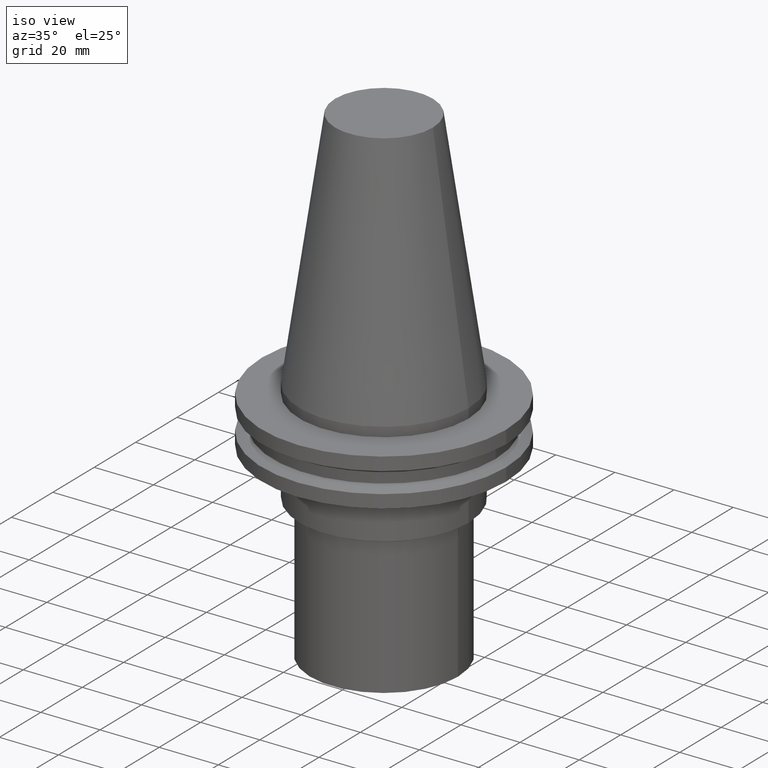
[diagram: clean part render]
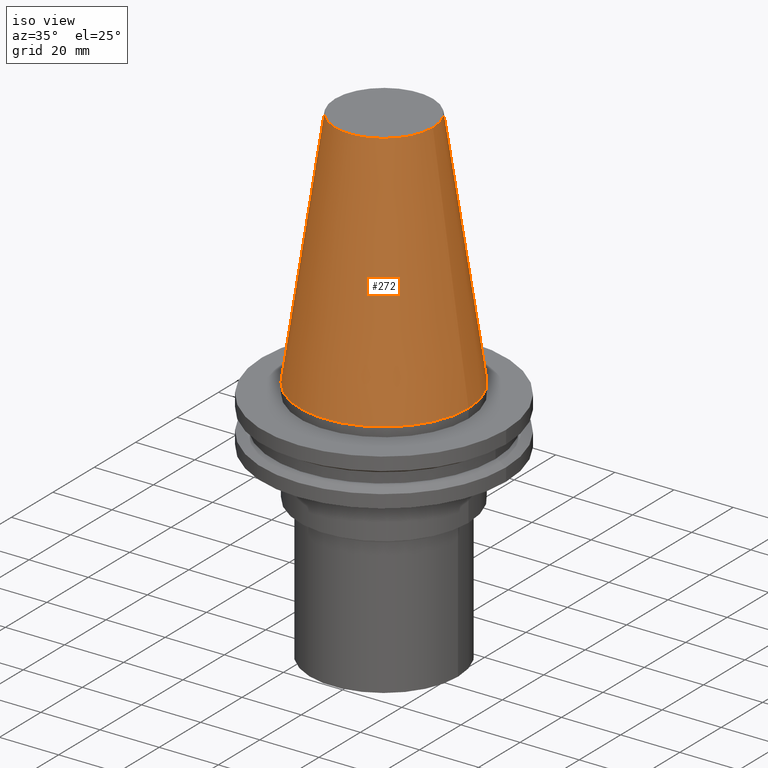
[diagram: tour spotlight — one face highlighted and labeled with its STEP entity id]
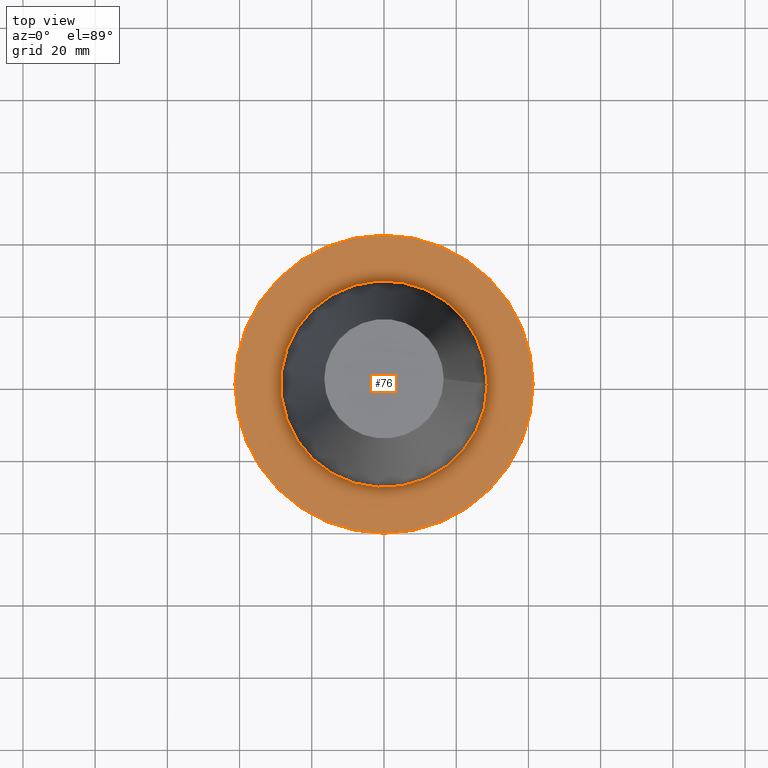
[diagram: tour spotlight — one face highlighted and labeled with its STEP entity id]
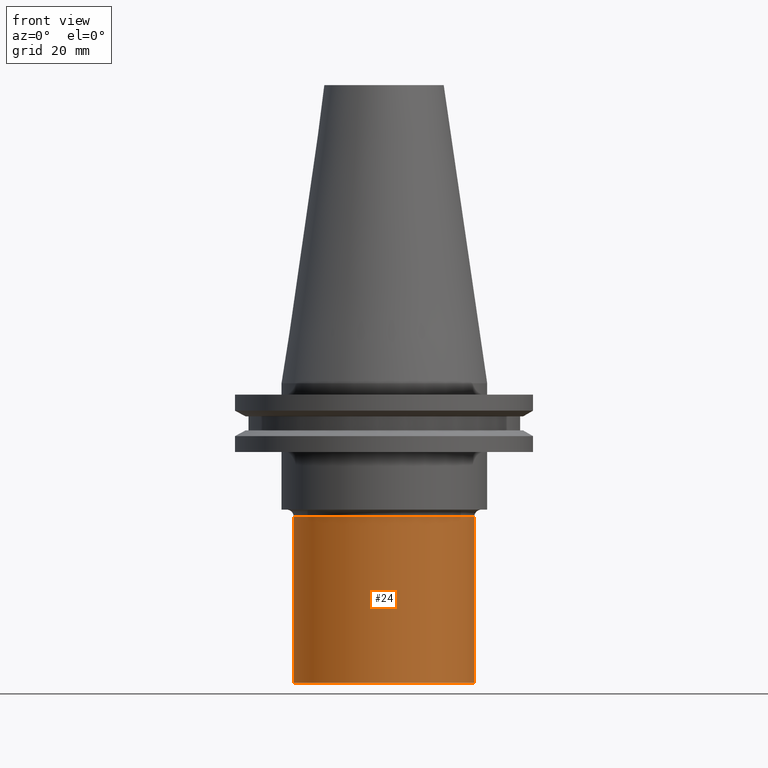
[diagram: tour spotlight — one face highlighted and labeled with its STEP entity id]
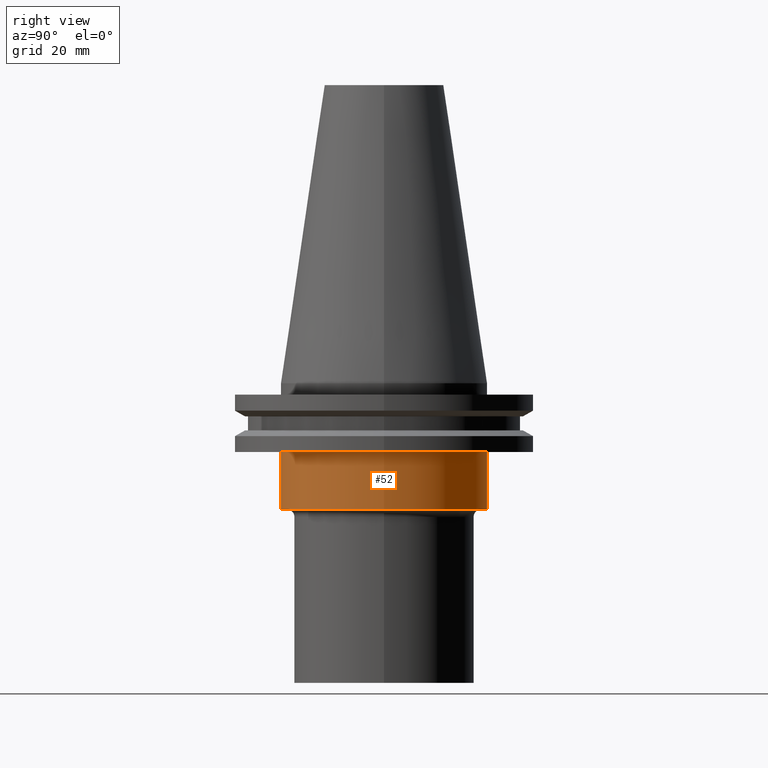
[diagram: tour spotlight — one face highlighted and labeled with its STEP entity id]
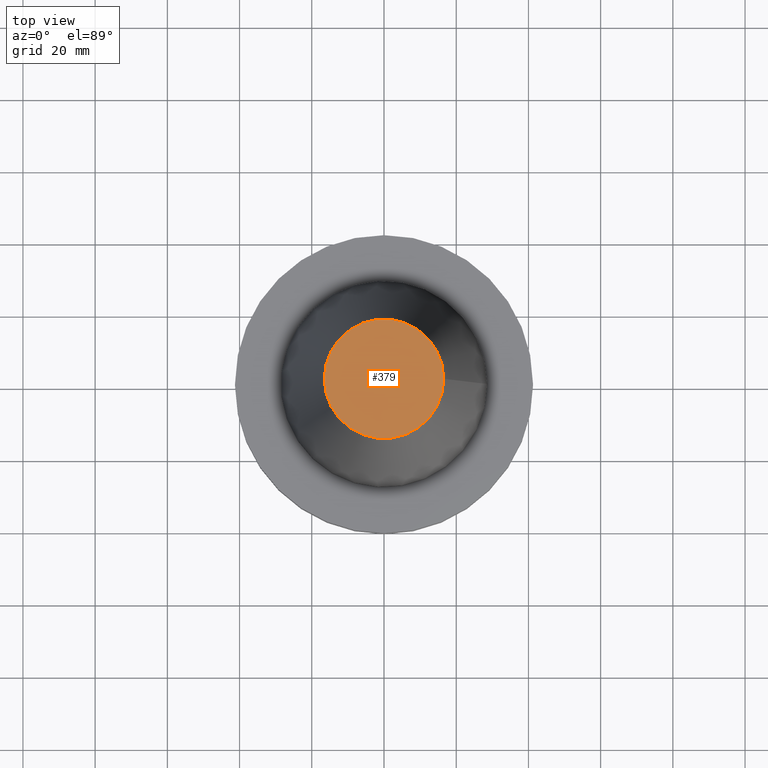
[diagram: tour spotlight — one face highlighted and labeled with its STEP entity id]
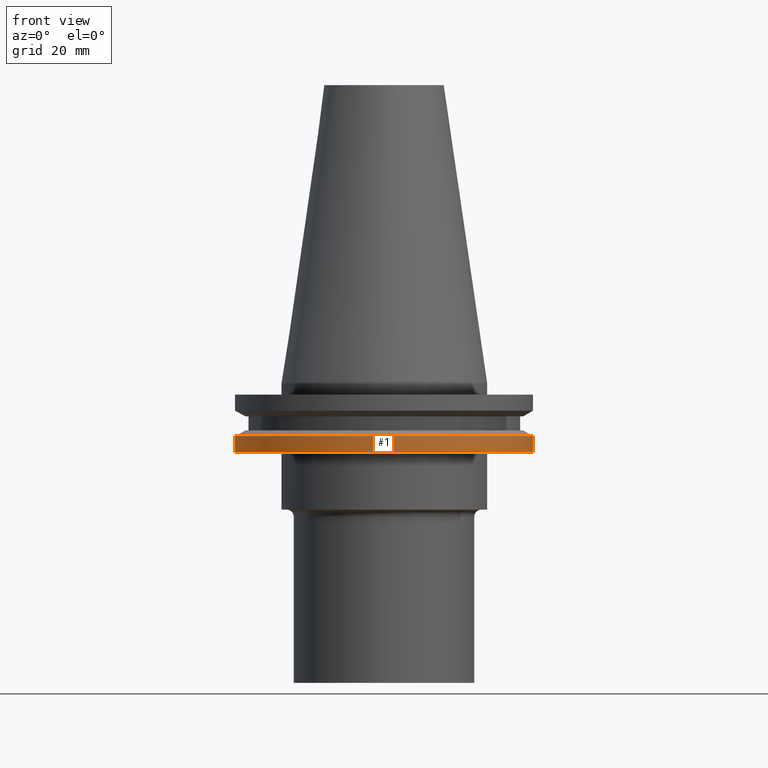
[diagram: tour spotlight — one face highlighted and labeled with its STEP entity id]
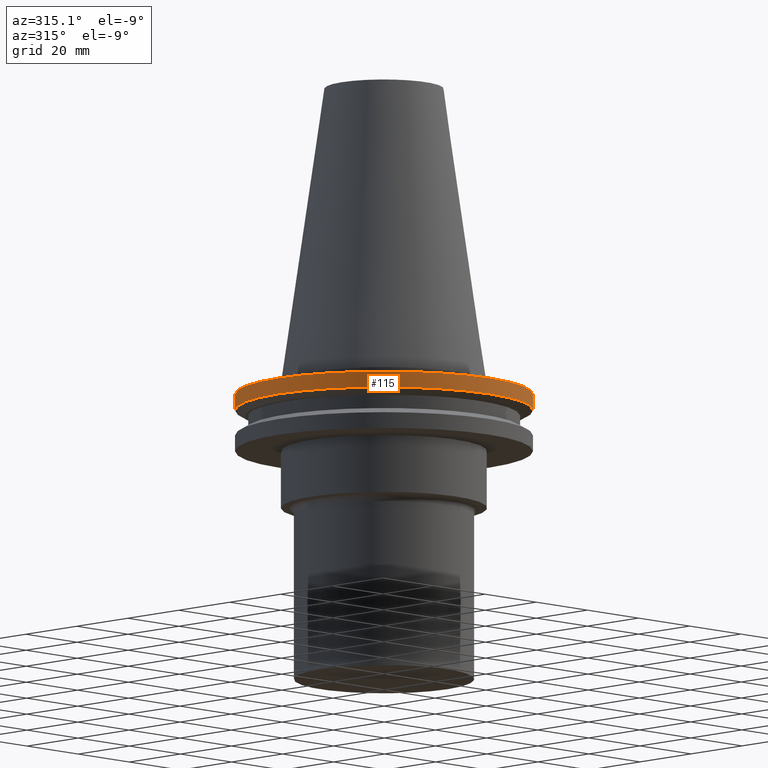
[diagram: tour spotlight — one face highlighted and labeled with its STEP entity id]
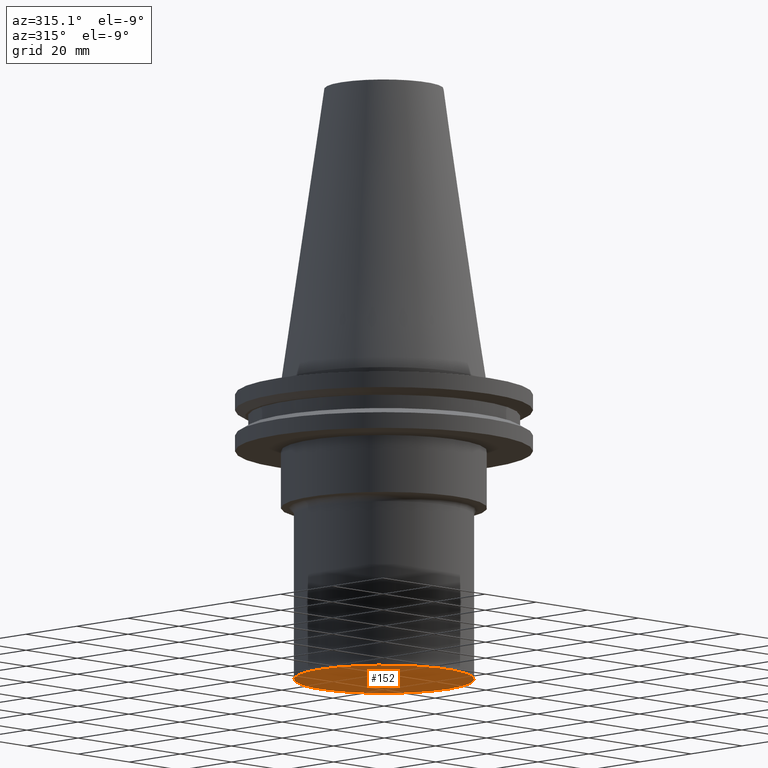
[diagram: tour spotlight — one face highlighted and labeled with its STEP entity id]
A machine part: a face-by-face anatomy tour. The part has 17 B-rep faces; the first image is the clean iso view, then the 8 largest visible faces are spotlighted one at a time (largest first), each with its STEP entity span.

Face 1 — iso view, entity #272. In plain terms, the highlighted conical surface has half-angle 8.297 deg.
Definition (entity closure, byte-faithful):
#6 = FACE_OUTER_BOUND ( 'NONE', #277, .T. ) ;
#26 = CARTESIAN_POINT ( 'NONE',  ( 16.53634466332832886, 0.000000000000000000, 82.55000000000001137 ) ) ;
#32 = AXIS2_PLACEMENT_3D ( 'NONE', #231, #386, #392 ) ;
#53 = CARTESIAN_POINT ( 'NONE',  ( 0.000000000000000000, 0.000000000000000000, 82.55000000000001137 ) ) ;
#111 = AXIS2_PLACEMENT_3D ( 'NONE', #53, #304, #270 ) ;
#122 = VERTEX_POINT ( 'NONE', #26 ) ;
#170 = EDGE_CURVE ( 'NONE', #372, #372, #404, .T. ) ;
#178 = EDGE_LOOP ( 'NONE', ( #374 ) ) ;
#191 = CIRCLE ( 'NONE', #111, 16.53634466332832886 ) ;
#199 = CARTESIAN_POINT ( 'NONE',  ( 0.000000000000000000, 0.000000000000000000, 0.000000000000000000 ) ) ;
#211 = ORIENTED_EDGE ( 'NONE', *, *, #170, .T. ) ;
#220 = AXIS2_PLACEMENT_3D ( 'NONE', #199, #324, #264 ) ;
#231 = CARTESIAN_POINT ( 'NONE',  ( 0.000000000000000000, 0.000000000000000000, 0.000000000000000000 ) ) ;
#255 = FACE_BOUND ( 'NONE', #178, .T. ) ;
#264 = DIRECTION ( 'NONE',  ( 1.000000000000000000, 0.000000000000000000, 0.000000000000000000 ) ) ;
#270 = DIRECTION ( 'NONE',  ( 1.000000000000000000, 0.000000000000000000, 0.000000000000000000 ) ) ;
#272 = ADVANCED_FACE ( 'NONE', ( #255, #6 ), #398, .T. ) ;
#277 = EDGE_LOOP ( 'NONE', ( #211 ) ) ;
#304 = DIRECTION ( 'NONE',  ( -0.000000000000000000, -0.000000000000000000, 1.000000000000000000 ) ) ;
#305 = CARTESIAN_POINT ( 'NONE',  ( 28.57499999999999218, 0.000000000000000000, 0.000000000000000000 ) ) ;
#324 = DIRECTION ( 'NONE',  ( -0.000000000000000000, -0.000000000000000000, 1.000000000000000000 ) ) ;
#372 = VERTEX_POINT ( 'NONE', #305 ) ;
#374 = ORIENTED_EDGE ( 'NONE', *, *, #394, .F. ) ;
#386 = DIRECTION ( 'NONE',  ( 0.000000000000000000, 0.000000000000000000, -1.000000000000000000 ) ) ;
#392 = DIRECTION ( 'NONE',  ( -1.000000000000000000, 0.000000000000000000, 0.000000000000000000 ) ) ;
#394 = EDGE_CURVE ( 'NONE', #122, #122, #191, .T. ) ;
#398 = CONICAL_SURFACE ( 'NONE', #32, 28.57499999999999218, 0.1448138465474119174 ) ;
#404 = CIRCLE ( 'NONE', #220, 28.57499999999999218 ) ;

Face 2 — top view, entity #76. In plain terms, the highlighted planar face has unit normal (0, 0, -1).
Definition (entity closure, byte-faithful):
#39 = CARTESIAN_POINT ( 'NONE',  ( 0.000000000000000000, 0.000000000000000000, -3.174999999999997158 ) ) ;
#41 = DIRECTION ( 'NONE',  ( 1.000000000000000000, 0.000000000000000000, 0.000000000000000000 ) ) ;
#45 = EDGE_CURVE ( 'NONE', #48, #48, #301, .T. ) ;
#48 = VERTEX_POINT ( 'NONE', #402 ) ;
#74 = DIRECTION ( 'NONE',  ( -0.000000000000000000, -0.000000000000000000, 1.000000000000000000 ) ) ;
#76 = ADVANCED_FACE ( 'NONE', ( #194, #126 ), #322, .F. ) ;
#109 = CIRCLE ( 'NONE', #316, 41.27499999999999147 ) ;
#114 = ORIENTED_EDGE ( 'NONE', *, *, #128, .T. ) ;
#126 = FACE_OUTER_BOUND ( 'NONE', #216, .T. ) ;
#128 = EDGE_CURVE ( 'NONE', #144, #144, #109, .T. ) ;
#144 = VERTEX_POINT ( 'NONE', #240 ) ;
#156 = CARTESIAN_POINT ( 'NONE',  ( 0.000000000000000000, 41.27499999999999147, -3.174999999999994493 ) ) ;
#190 = AXIS2_PLACEMENT_3D ( 'NONE', #378, #385, #279 ) ;
#194 = FACE_BOUND ( 'NONE', #339, .T. ) ;
#216 = EDGE_LOOP ( 'NONE', ( #114 ) ) ;
#240 = CARTESIAN_POINT ( 'NONE',  ( 41.27499999999999147, 0.000000000000000000, -3.174999999999997158 ) ) ;
#251 = DIRECTION ( 'NONE',  ( -1.000000000000000000, 0.000000000000000000, -0.000000000000000000 ) ) ;
#273 = AXIS2_PLACEMENT_3D ( 'NONE', #156, #413, #251 ) ;
#279 = DIRECTION ( 'NONE',  ( 1.000000000000000000, 0.000000000000000000, 0.000000000000000000 ) ) ;
#301 = CIRCLE ( 'NONE', #190, 28.57499999999999218 ) ;
#316 = AXIS2_PLACEMENT_3D ( 'NONE', #39, #74, #41 ) ;
#322 = PLANE ( 'NONE',  #273 ) ;
#339 = EDGE_LOOP ( 'NONE', ( #380 ) ) ;
#378 = CARTESIAN_POINT ( 'NONE',  ( 0.000000000000000000, 0.000000000000000000, -3.174999999999997158 ) ) ;
#380 = ORIENTED_EDGE ( 'NONE', *, *, #45, .F. ) ;
#385 = DIRECTION ( 'NONE',  ( -0.000000000000000000, -0.000000000000000000, 1.000000000000000000 ) ) ;
#402 = CARTESIAN_POINT ( 'NONE',  ( 28.57499999999999218, 0.000000000000000000, -3.174999999999997158 ) ) ;
#413 = DIRECTION ( 'NONE',  ( 0.000000000000000000, 0.000000000000000000, -1.000000000000000000 ) ) ;

Face 3 — front view, entity #24. In plain terms, the highlighted cylindrical surface (bore or boss wall) has radius 25 mm, axis along (-0, -0, 1).
Definition (entity closure, byte-faithful):
#24 = ADVANCED_FACE ( 'NONE', ( #129, #30 ), #31, .T. ) ;
#29 = CIRCLE ( 'NONE', #331, 25.00000000000000355 ) ;
#30 = FACE_OUTER_BOUND ( 'NONE', #406, .T. ) ;
#31 = CYLINDRICAL_SURFACE ( 'NONE', #38, 25.00000000000000000 ) ;
#38 = AXIS2_PLACEMENT_3D ( 'NONE', #94, #219, #254 ) ;
#79 = CARTESIAN_POINT ( 'NONE',  ( 0.000000000000000000, 0.000000000000000000, -37.00000000000000711 ) ) ;
#83 = VERTEX_POINT ( 'NONE', #209 ) ;
#94 = CARTESIAN_POINT ( 'NONE',  ( 0.000000000000000000, 0.000000000000000000, 0.000000000000000000 ) ) ;
#110 = DIRECTION ( 'NONE',  ( 1.000000000000000000, 0.000000000000000000, 0.000000000000000000 ) ) ;
#113 = DIRECTION ( 'NONE',  ( 1.000000000000000000, 0.000000000000000000, 0.000000000000000000 ) ) ;
#129 = FACE_OUTER_BOUND ( 'NONE', #312, .T. ) ;
#145 = ORIENTED_EDGE ( 'NONE', *, *, #161, .T. ) ;
#149 = CARTESIAN_POINT ( 'NONE',  ( 25.00000000000000000, 0.000000000000000000, -83.00000000000000000 ) ) ;
#161 = EDGE_CURVE ( 'NONE', #179, #179, #239, .T. ) ;
#166 = AXIS2_PLACEMENT_3D ( 'NONE', #202, #227, #110 ) ;
#179 = VERTEX_POINT ( 'NONE', #149 ) ;
#202 = CARTESIAN_POINT ( 'NONE',  ( 0.000000000000000000, 0.000000000000000000, -83.00000000000000000 ) ) ;
#209 = CARTESIAN_POINT ( 'NONE',  ( 25.00000000000000355, 0.000000000000000000, -37.00000000000000711 ) ) ;
#219 = DIRECTION ( 'NONE',  ( -0.000000000000000000, -0.000000000000000000, 1.000000000000000000 ) ) ;
#227 = DIRECTION ( 'NONE',  ( -0.000000000000000000, -0.000000000000000000, 1.000000000000000000 ) ) ;
#239 = CIRCLE ( 'NONE', #166, 25.00000000000000000 ) ;
#249 = ORIENTED_EDGE ( 'NONE', *, *, #338, .F. ) ;
#254 = DIRECTION ( 'NONE',  ( 1.000000000000000000, 0.000000000000000000, 0.000000000000000000 ) ) ;
#312 = EDGE_LOOP ( 'NONE', ( #249 ) ) ;
#331 = AXIS2_PLACEMENT_3D ( 'NONE', #79, #336, #113 ) ;
#336 = DIRECTION ( 'NONE',  ( -0.000000000000000000, -0.000000000000000000, 1.000000000000000000 ) ) ;
#338 = EDGE_CURVE ( 'NONE', #83, #83, #29, .T. ) ;
#406 = EDGE_LOOP ( 'NONE', ( #145 ) ) ;

Face 4 — right view, entity #52. In plain terms, the highlighted cylindrical surface (bore or boss wall) has radius 28.575 mm, axis along (-0, -0, 1).
Definition (entity closure, byte-faithful):
#11 = CARTESIAN_POINT ( 'NONE',  ( 0.000000000000000000, 0.000000000000000000, -19.04999999999999716 ) ) ;
#12 = DIRECTION ( 'NONE',  ( -0.000000000000000000, -0.000000000000000000, 1.000000000000000000 ) ) ;
#19 = CARTESIAN_POINT ( 'NONE',  ( 28.57499999999999929, 0.000000000000000000, -34.99999999999999289 ) ) ;
#21 = CARTESIAN_POINT ( 'NONE',  ( 28.57499999999999929, 0.000000000000000000, -19.04999999999999716 ) ) ;
#50 = VERTEX_POINT ( 'NONE', #19 ) ;
#52 = ADVANCED_FACE ( 'NONE', ( #98, #222 ), #189, .T. ) ;
#59 = EDGE_LOOP ( 'NONE', ( #132 ) ) ;
#81 = AXIS2_PLACEMENT_3D ( 'NONE', #11, #12, #140 ) ;
#98 = FACE_OUTER_BOUND ( 'NONE', #59, .T. ) ;
#124 = EDGE_CURVE ( 'NONE', #307, #307, #349, .T. ) ;
#132 = ORIENTED_EDGE ( 'NONE', *, *, #124, .F. ) ;
#133 = CARTESIAN_POINT ( 'NONE',  ( 0.000000000000000000, 0.000000000000000000, -34.99999999999999289 ) ) ;
#140 = DIRECTION ( 'NONE',  ( 1.000000000000000000, 0.000000000000000000, 0.000000000000000000 ) ) ;
#153 = EDGE_LOOP ( 'NONE', ( #181 ) ) ;
#181 = ORIENTED_EDGE ( 'NONE', *, *, #243, .T. ) ;
#189 = CYLINDRICAL_SURFACE ( 'NONE', #248, 28.57499999999999929 ) ;
#192 = DIRECTION ( 'NONE',  ( -0.000000000000000000, -0.000000000000000000, 1.000000000000000000 ) ) ;
#198 = DIRECTION ( 'NONE',  ( 1.000000000000000000, 0.000000000000000000, 0.000000000000000000 ) ) ;
#201 = CIRCLE ( 'NONE', #309, 28.57499999999999929 ) ;
#222 = FACE_OUTER_BOUND ( 'NONE', #153, .T. ) ;
#229 = DIRECTION ( 'NONE',  ( -0.000000000000000000, -0.000000000000000000, 1.000000000000000000 ) ) ;
#243 = EDGE_CURVE ( 'NONE', #50, #50, #201, .T. ) ;
#248 = AXIS2_PLACEMENT_3D ( 'NONE', #412, #192, #317 ) ;
#307 = VERTEX_POINT ( 'NONE', #21 ) ;
#309 = AXIS2_PLACEMENT_3D ( 'NONE', #133, #229, #198 ) ;
#317 = DIRECTION ( 'NONE',  ( 1.000000000000000000, 0.000000000000000000, 0.000000000000000000 ) ) ;
#349 = CIRCLE ( 'NONE', #81, 28.57499999999999929 ) ;
#412 = CARTESIAN_POINT ( 'NONE',  ( 0.000000000000000000, 0.000000000000000000, 82.54999999999999716 ) ) ;

Face 5 — top view, entity #379. In plain terms, the highlighted planar face has unit normal (0, 0, -1).
Definition (entity closure, byte-faithful):
#26 = CARTESIAN_POINT ( 'NONE',  ( 16.53634466332832886, 0.000000000000000000, 82.55000000000001137 ) ) ;
#46 = CARTESIAN_POINT ( 'NONE',  ( 0.000000000000000000, 16.53634466332832886, 82.55000000000001137 ) ) ;
#53 = CARTESIAN_POINT ( 'NONE',  ( 0.000000000000000000, 0.000000000000000000, 82.55000000000001137 ) ) ;
#63 = AXIS2_PLACEMENT_3D ( 'NONE', #46, #344, #342 ) ;
#111 = AXIS2_PLACEMENT_3D ( 'NONE', #53, #304, #270 ) ;
#122 = VERTEX_POINT ( 'NONE', #26 ) ;
#191 = CIRCLE ( 'NONE', #111, 16.53634466332832886 ) ;
#204 = FACE_OUTER_BOUND ( 'NONE', #244, .T. ) ;
#241 = ORIENTED_EDGE ( 'NONE', *, *, #394, .T. ) ;
#244 = EDGE_LOOP ( 'NONE', ( #241 ) ) ;
#269 = PLANE ( 'NONE',  #63 ) ;
#270 = DIRECTION ( 'NONE',  ( 1.000000000000000000, 0.000000000000000000, 0.000000000000000000 ) ) ;
#304 = DIRECTION ( 'NONE',  ( -0.000000000000000000, -0.000000000000000000, 1.000000000000000000 ) ) ;
#342 = DIRECTION ( 'NONE',  ( -1.000000000000000000, 0.000000000000000000, -0.000000000000000000 ) ) ;
#344 = DIRECTION ( 'NONE',  ( 0.000000000000000000, 0.000000000000000000, -1.000000000000000000 ) ) ;
#379 = ADVANCED_FACE ( 'NONE', ( #204 ), #269, .F. ) ;
#394 = EDGE_CURVE ( 'NONE', #122, #122, #191, .T. ) ;

Face 6 — front view, entity #1. In plain terms, the highlighted cylindrical surface (bore or boss wall) has radius 41.275 mm, axis along (-0, -0, 1).
Definition (entity closure, byte-faithful):
#1 = ADVANCED_FACE ( 'NONE', ( #158, #347 ), #351, .T. ) ;
#56 = CARTESIAN_POINT ( 'NONE',  ( 0.000000000000000000, 0.000000000000000000, 82.54999999999999716 ) ) ;
#85 = VERTEX_POINT ( 'NONE', #370 ) ;
#120 = DIRECTION ( 'NONE',  ( -0.000000000000000000, -0.000000000000000000, 1.000000000000000000 ) ) ;
#151 = VERTEX_POINT ( 'NONE', #276 ) ;
#154 = DIRECTION ( 'NONE',  ( -0.000000000000000000, -0.000000000000000000, 1.000000000000000000 ) ) ;
#158 = FACE_OUTER_BOUND ( 'NONE', #345, .T. ) ;
#159 = AXIS2_PLACEMENT_3D ( 'NONE', #56, #154, #193 ) ;
#183 = ORIENTED_EDGE ( 'NONE', *, *, #299, .F. ) ;
#193 = DIRECTION ( 'NONE',  ( 1.000000000000000000, 0.000000000000000000, 0.000000000000000000 ) ) ;
#195 = AXIS2_PLACEMENT_3D ( 'NONE', #262, #290, #327 ) ;
#236 = CARTESIAN_POINT ( 'NONE',  ( 0.000000000000000000, 0.000000000000000000, -19.04999999999999716 ) ) ;
#262 = CARTESIAN_POINT ( 'NONE',  ( 0.000000000000000000, 0.000000000000000000, -14.65472339340269414 ) ) ;
#276 = CARTESIAN_POINT ( 'NONE',  ( 41.27499999999999147, 0.000000000000000000, -19.04999999999999716 ) ) ;
#286 = CIRCLE ( 'NONE', #195, 41.27500000000000568 ) ;
#290 = DIRECTION ( 'NONE',  ( -0.000000000000000000, -0.000000000000000000, 1.000000000000000000 ) ) ;
#299 = EDGE_CURVE ( 'NONE', #85, #85, #286, .T. ) ;
#313 = EDGE_LOOP ( 'NONE', ( #371 ) ) ;
#318 = AXIS2_PLACEMENT_3D ( 'NONE', #236, #120, #401 ) ;
#327 = DIRECTION ( 'NONE',  ( 1.000000000000000000, 0.000000000000000000, 0.000000000000000000 ) ) ;
#345 = EDGE_LOOP ( 'NONE', ( #183 ) ) ;
#347 = FACE_OUTER_BOUND ( 'NONE', #313, .T. ) ;
#351 = CYLINDRICAL_SURFACE ( 'NONE', #159, 41.27499999999999858 ) ;
#355 = CIRCLE ( 'NONE', #318, 41.27499999999999147 ) ;
#362 = EDGE_CURVE ( 'NONE', #151, #151, #355, .T. ) ;
#370 = CARTESIAN_POINT ( 'NONE',  ( 41.27500000000000568, 0.000000000000000000, -14.65472339340269414 ) ) ;
#371 = ORIENTED_EDGE ( 'NONE', *, *, #362, .T. ) ;
#401 = DIRECTION ( 'NONE',  ( 1.000000000000000000, 0.000000000000000000, 0.000000000000000000 ) ) ;

Face 7 — auxiliary view, entity #115. In plain terms, the highlighted cylindrical surface (bore or boss wall) has radius 41.275 mm, axis along (-0, -0, 1).
Definition (entity closure, byte-faithful):
#20 = ORIENTED_EDGE ( 'NONE', *, *, #128, .F. ) ;
#23 = AXIS2_PLACEMENT_3D ( 'NONE', #99, #361, #332 ) ;
#25 = CARTESIAN_POINT ( 'NONE',  ( 41.27500000000000568, 0.000000000000000000, -7.605276606597321631 ) ) ;
#39 = CARTESIAN_POINT ( 'NONE',  ( 0.000000000000000000, 0.000000000000000000, -3.174999999999997158 ) ) ;
#41 = DIRECTION ( 'NONE',  ( 1.000000000000000000, 0.000000000000000000, 0.000000000000000000 ) ) ;
#44 = FACE_OUTER_BOUND ( 'NONE', #353, .T. ) ;
#74 = DIRECTION ( 'NONE',  ( -0.000000000000000000, -0.000000000000000000, 1.000000000000000000 ) ) ;
#77 = DIRECTION ( 'NONE',  ( -0.000000000000000000, -0.000000000000000000, 1.000000000000000000 ) ) ;
#86 = EDGE_LOOP ( 'NONE', ( #20 ) ) ;
#87 = CARTESIAN_POINT ( 'NONE',  ( 0.000000000000000000, 0.000000000000000000, -7.605276606597321631 ) ) ;
#88 = ORIENTED_EDGE ( 'NONE', *, *, #356, .T. ) ;
#99 = CARTESIAN_POINT ( 'NONE',  ( 0.000000000000000000, 0.000000000000000000, 82.54999999999999716 ) ) ;
#103 = FACE_OUTER_BOUND ( 'NONE', #86, .T. ) ;
#109 = CIRCLE ( 'NONE', #316, 41.27499999999999147 ) ;
#115 = ADVANCED_FACE ( 'NONE', ( #103, #44 ), #359, .T. ) ;
#128 = EDGE_CURVE ( 'NONE', #144, #144, #109, .T. ) ;
#144 = VERTEX_POINT ( 'NONE', #240 ) ;
#226 = AXIS2_PLACEMENT_3D ( 'NONE', #87, #77, #400 ) ;
#240 = CARTESIAN_POINT ( 'NONE',  ( 41.27499999999999147, 0.000000000000000000, -3.174999999999997158 ) ) ;
#294 = CIRCLE ( 'NONE', #226, 41.27500000000000568 ) ;
#311 = VERTEX_POINT ( 'NONE', #25 ) ;
#316 = AXIS2_PLACEMENT_3D ( 'NONE', #39, #74, #41 ) ;
#332 = DIRECTION ( 'NONE',  ( 1.000000000000000000, 0.000000000000000000, 0.000000000000000000 ) ) ;
#353 = EDGE_LOOP ( 'NONE', ( #88 ) ) ;
#356 = EDGE_CURVE ( 'NONE', #311, #311, #294, .T. ) ;
#359 = CYLINDRICAL_SURFACE ( 'NONE', #23, 41.27499999999999858 ) ;
#361 = DIRECTION ( 'NONE',  ( -0.000000000000000000, -0.000000000000000000, 1.000000000000000000 ) ) ;
#400 = DIRECTION ( 'NONE',  ( 1.000000000000000000, 0.000000000000000000, 0.000000000000000000 ) ) ;

Face 8 — auxiliary view, entity #152. In plain terms, the highlighted planar face has unit normal (0, -0, 1).
Definition (entity closure, byte-faithful):
#64 = CARTESIAN_POINT ( 'NONE',  ( 0.000000000000000000, 25.00000000000000000, -83.00000000000000000 ) ) ;
#78 = ORIENTED_EDGE ( 'NONE', *, *, #161, .F. ) ;
#95 = AXIS2_PLACEMENT_3D ( 'NONE', #64, #223, #107 ) ;
#107 = DIRECTION ( 'NONE',  ( 1.000000000000000000, 0.000000000000000000, 0.000000000000000000 ) ) ;
#110 = DIRECTION ( 'NONE',  ( 1.000000000000000000, 0.000000000000000000, 0.000000000000000000 ) ) ;
#149 = CARTESIAN_POINT ( 'NONE',  ( 25.00000000000000000, 0.000000000000000000, -83.00000000000000000 ) ) ;
#152 = ADVANCED_FACE ( 'NONE', ( #171 ), #395, .F. ) ;
#161 = EDGE_CURVE ( 'NONE', #179, #179, #239, .T. ) ;
#166 = AXIS2_PLACEMENT_3D ( 'NONE', #202, #227, #110 ) ;
#171 = FACE_OUTER_BOUND ( 'NONE', #410, .T. ) ;
#179 = VERTEX_POINT ( 'NONE', #149 ) ;
#202 = CARTESIAN_POINT ( 'NONE',  ( 0.000000000000000000, 0.000000000000000000, -83.00000000000000000 ) ) ;
#223 = DIRECTION ( 'NONE',  ( 0.000000000000000000, -0.000000000000000000, 1.000000000000000000 ) ) ;
#227 = DIRECTION ( 'NONE',  ( -0.000000000000000000, -0.000000000000000000, 1.000000000000000000 ) ) ;
#239 = CIRCLE ( 'NONE', #166, 25.00000000000000000 ) ;
#395 = PLANE ( 'NONE',  #95 ) ;
#410 = EDGE_LOOP ( 'NONE', ( #78 ) ) ;